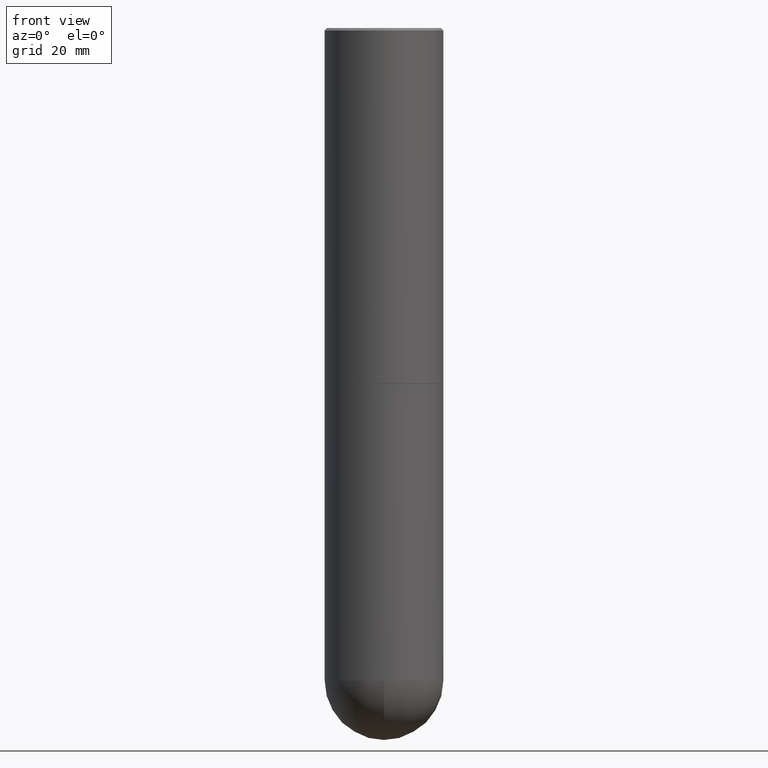
[diagram: clean part render]
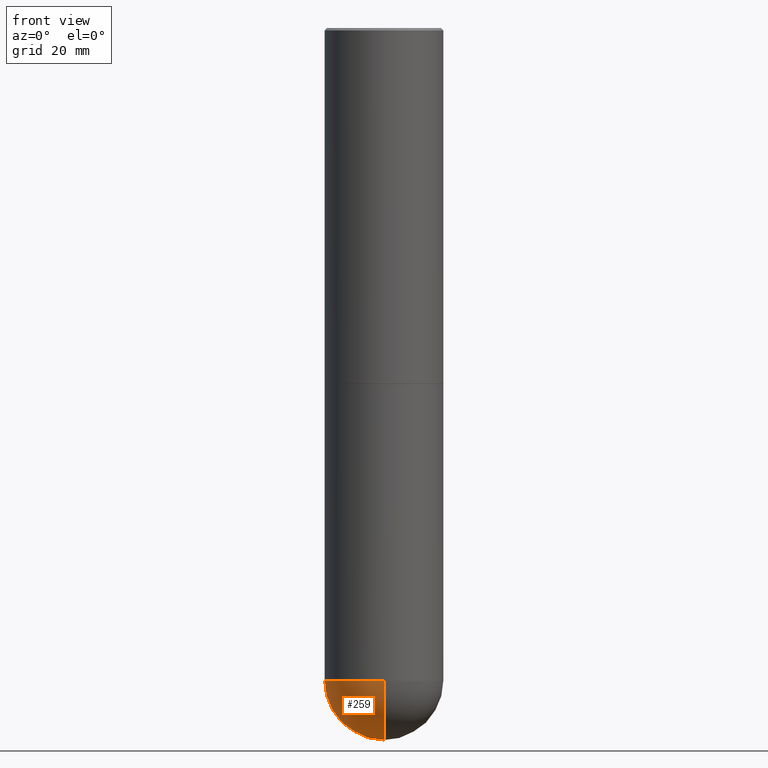
[diagram: same view with one face highlighted and labeled with its STEP entity id]
A machine part, front view. The second image highlights one B-rep face of the part: STEP entity #259.
In plain terms, the highlighted spherical surface has radius 12.5006 mm.
Its self-contained STEP definition (entity closure, byte-faithful):
#19 = ORIENTED_EDGE ( 'NONE', *, *, #238, .T. ) ;
#20 = CARTESIAN_POINT ( 'NONE',  ( 1.290705878404842200E-28, -1.937479287376659043E-14, -5.413349999999999440 ) ) ;
#22 = AXIS2_PLACEMENT_3D ( 'NONE', #309, #222, #253 ) ;
#27 = DIRECTION ( 'NONE',  ( 1.000000000000000000, -6.982962677686265922E-15, 4.883557194083112340E-29 ) ) ;
#33 = EDGE_CURVE ( 'NONE', #307, #366, #163, .T. ) ;
#38 = CARTESIAN_POINT ( 'NONE',  ( 3.436665081823426728E-15, 0.4921499999999808250, -5.413350000000002105 ) ) ;
#50 = ORIENTED_EDGE ( 'NONE', *, *, #33, .F. ) ;
#70 = FACE_OUTER_BOUND ( 'NONE', #199, .T. ) ;
#76 = ORIENTED_EDGE ( 'NONE', *, *, #123, .F. ) ;
#91 = CARTESIAN_POINT ( 'NONE',  ( 1.323817856196230713E-28, -1.890061050562653856E-14, -5.413349999999999440 ) ) ;
#106 = CARTESIAN_POINT ( 'NONE',  ( 1.290705878404842200E-28, -1.937479287376659043E-14, -5.413349999999999440 ) ) ;
#120 = ORIENTED_EDGE ( 'NONE', *, *, #151, .F. ) ;
#123 = EDGE_CURVE ( 'NONE', #273, #307, #412, .T. ) ;
#131 = DIRECTION ( 'NONE',  ( -7.105427357601001070E-15, -1.000000000000000000, 0.000000000000000000 ) ) ;
#133 = CIRCLE ( 'NONE', #244, 0.4921500000000000874 ) ;
#145 = VERTEX_POINT ( 'NONE', #304 ) ;
#151 = EDGE_CURVE ( 'NONE', #145, #273, #133, .T. ) ;
#163 = CIRCLE ( 'NONE', #22, 0.4921499999999999764 ) ;
#190 = CARTESIAN_POINT ( 'NONE',  ( 1.290705878404842200E-28, -1.937479287376659043E-14, -5.413349999999999440 ) ) ;
#196 = DIRECTION ( 'NONE',  ( -1.000000000000000000, 6.982962677686266711E-15, -4.883557194083112901E-29 ) ) ;
#199 = EDGE_LOOP ( 'NONE', ( #120, #19, #50, #76 ) ) ;
#200 = AXIS2_PLACEMENT_3D ( 'NONE', #190, #219, #131 ) ;
#211 = DIRECTION ( 'NONE',  ( -2.445468806185136597E-29, 3.491481338843145583E-15, 1.000000000000000000 ) ) ;
#215 = CARTESIAN_POINT ( 'NONE',  ( -3.496936074043201946E-15, -0.4921500000000192387, -5.413349999999997664 ) ) ;
#219 = DIRECTION ( 'NONE',  ( -1.000000000000000000, 7.105427357601001070E-15, -4.926315508542082329E-29 ) ) ;
#222 = DIRECTION ( 'NONE',  ( -2.445468806185136597E-29, 3.491481338843145583E-15, 1.000000000000000000 ) ) ;
#235 = SPHERICAL_SURFACE ( 'NONE', #351, 0.4921500000000000874 ) ;
#238 = EDGE_CURVE ( 'NONE', #145, #366, #266, .T. ) ;
#244 = AXIS2_PLACEMENT_3D ( 'NONE', #20, #27, #358 ) ;
#251 = DIRECTION ( 'NONE',  ( 1.000000000000000000, -6.982962677686265922E-15, 0.000000000000000000 ) ) ;
#253 = DIRECTION ( 'NONE',  ( 1.000000000000000000, -6.982962677686265922E-15, 0.000000000000000000 ) ) ;
#259 = ADVANCED_FACE ( 'NONE', ( #70 ), #235, .T. ) ;
#266 = CIRCLE ( 'NONE', #200, 0.4921500000000000874 ) ;
#273 = VERTEX_POINT ( 'NONE', #38 ) ;
#289 = DIRECTION ( 'NONE',  ( 6.982962677686266711E-15, 1.000000000000000000, -4.440675393541420887E-15 ) ) ;
#304 = CARTESIAN_POINT ( 'NONE',  ( 1.413163976147341948E-28, -2.106298991856822883E-14, -5.905499999999999972 ) ) ;
#307 = VERTEX_POINT ( 'NONE', #388 ) ;
#309 = CARTESIAN_POINT ( 'NONE',  ( 1.323817856196230713E-28, -1.890061050562653856E-14, -5.413349999999999440 ) ) ;
#351 = AXIS2_PLACEMENT_3D ( 'NONE', #106, #196, #289 ) ;
#358 = DIRECTION ( 'NONE',  ( 6.982962677686265922E-15, 1.000000000000000000, 0.000000000000000000 ) ) ;
#366 = VERTEX_POINT ( 'NONE', #215 ) ;
#380 = AXIS2_PLACEMENT_3D ( 'NONE', #91, #211, #251 ) ;
#388 = CARTESIAN_POINT ( 'NONE',  ( -0.4921499999999999764, -1.110801765337101862E-14, -5.413349999999999440 ) ) ;
#412 = CIRCLE ( 'NONE', #380, 0.4921499999999999764 ) ;